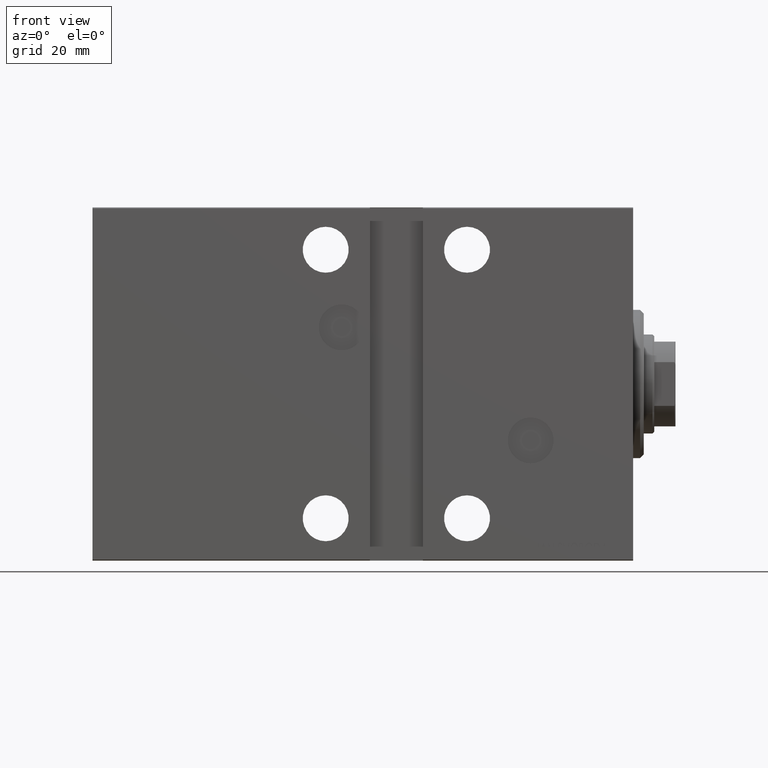
[diagram: clean part render]
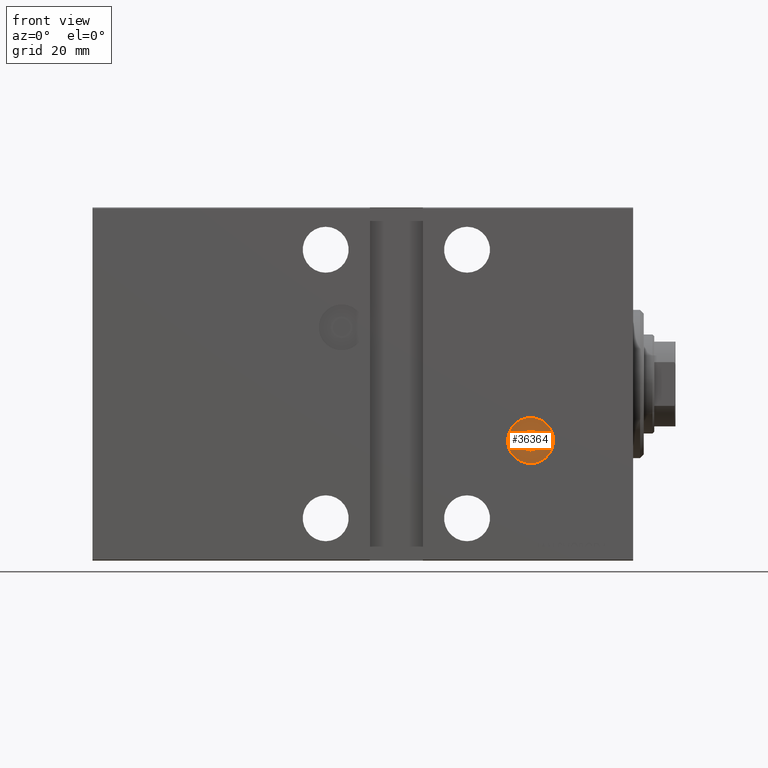
[diagram: same view with one face highlighted and labeled with its STEP entity id]
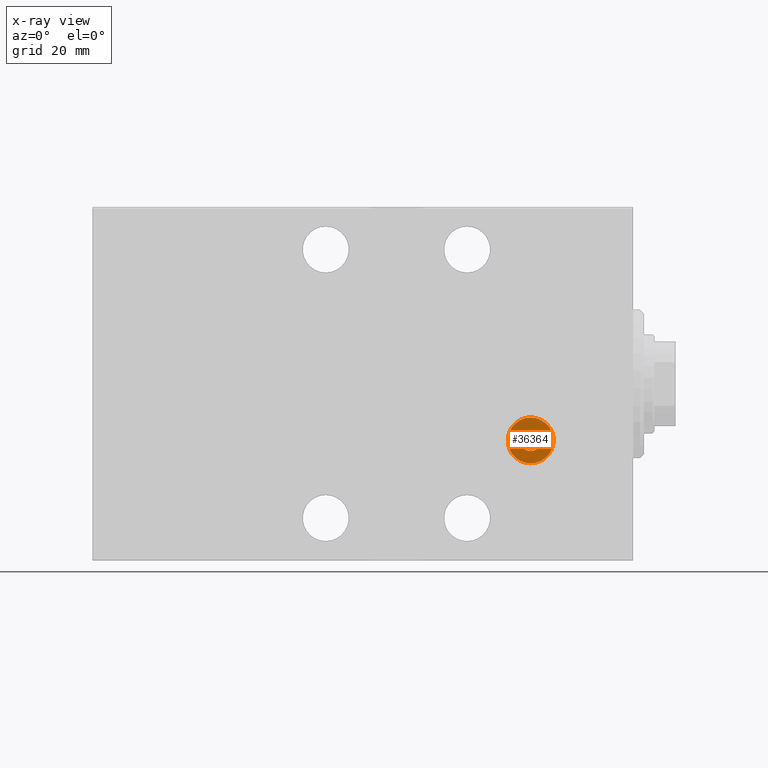
[diagram: x-ray of the same camera — body ghosted, the highlighted face saturated]
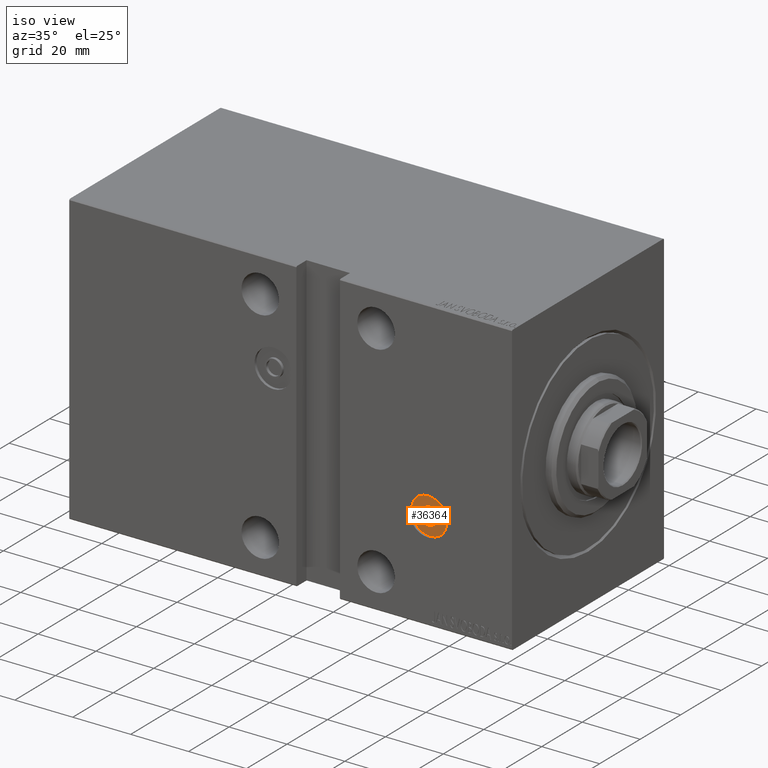
[diagram: same view with one face highlighted and labeled with its STEP entity id]
A machine part, front view. The second image highlights one B-rep face of the part: STEP entity #36364.
The next image is the same camera in x-ray: the body ghosted, the highlighted face saturated — about 0% of this face is hidden behind the body in this view.
A second angle (iso view) of the same face is appended — the face is thin or edge-on in the first view.
In plain terms, the highlighted planar face has unit normal (0, -1, 0).
Its self-contained STEP definition (entity closure, byte-faithful):
#2111 = CIRCLE ( 'NONE', #6363, 6.500000000000005329 ) ;
#3978 = CIRCLE ( 'NONE', #40716, 2.999999999999997335 ) ;
#4628 = CARTESIAN_POINT ( 'NONE',  ( 29.00000000000000000, 36.50000000000001421, -15.99999999999999289 ) ) ;
#4923 = DIRECTION ( 'NONE',  ( 0.000000000000000000, 0.000000000000000000, 1.000000000000000000 ) ) ;
#5073 = CARTESIAN_POINT ( 'NONE',  ( 29.00000000000000000, 36.50000000000001421, -15.99999999999999289 ) ) ;
#5890 = VERTEX_POINT ( 'NONE', #12467 ) ;
#5938 = VERTEX_POINT ( 'NONE', #31239 ) ;
#6363 = AXIS2_PLACEMENT_3D ( 'NONE', #5073, #11957, #15276 ) ;
#7512 = CARTESIAN_POINT ( 'NONE',  ( 29.00000000000000000, 36.50000000000001421, -12.99999999999999645 ) ) ;
#10674 = PLANE ( 'NONE',  #14236 ) ;
#11957 = DIRECTION ( 'NONE',  ( 0.000000000000000000, 1.000000000000000000, 1.067522139062650425E-16 ) ) ;
#12467 = CARTESIAN_POINT ( 'NONE',  ( 29.00000000000000000, 36.50000000000001421, -18.99999999999999289 ) ) ;
#13534 = AXIS2_PLACEMENT_3D ( 'NONE', #34815, #25077, #18222 ) ;
#14236 = AXIS2_PLACEMENT_3D ( 'NONE', #24157, #37653, #34539 ) ;
#14649 = FACE_BOUND ( 'NONE', #20075, .T. ) ;
#14909 = DIRECTION ( 'NONE',  ( 0.000000000000000000, 1.000000000000000000, 1.067522139062650425E-16 ) ) ;
#15117 = CARTESIAN_POINT ( 'NONE',  ( 29.00000000000000000, 36.50000000000001421, -15.99999999999999289 ) ) ;
#15177 = EDGE_CURVE ( 'NONE', #5890, #33008, #3978, .T. ) ;
#15276 = DIRECTION ( 'NONE',  ( 0.000000000000000000, 0.000000000000000000, 1.000000000000000000 ) ) ;
#16054 = ORIENTED_EDGE ( 'NONE', *, *, #30024, .T. ) ;
#17559 = ORIENTED_EDGE ( 'NONE', *, *, #15177, .F. ) ;
#18222 = DIRECTION ( 'NONE',  ( 0.000000000000000000, 0.000000000000000000, 1.000000000000000000 ) ) ;
#19200 = ORIENTED_EDGE ( 'NONE', *, *, #37012, .F. ) ;
#20075 = EDGE_LOOP ( 'NONE', ( #17559, #19200 ) ) ;
#21357 = EDGE_CURVE ( 'NONE', #5938, #24748, #28765, .T. ) ;
#23881 = CARTESIAN_POINT ( 'NONE',  ( 29.00000000000000000, 36.50000000000001421, -22.50000000000000000 ) ) ;
#24157 = CARTESIAN_POINT ( 'NONE',  ( 29.00000000000000000, 36.50000000000001421, -15.99999999999999289 ) ) ;
#24748 = VERTEX_POINT ( 'NONE', #23881 ) ;
#25077 = DIRECTION ( 'NONE',  ( 0.000000000000000000, 1.000000000000000000, 1.067522139062650425E-16 ) ) ;
#26698 = ORIENTED_EDGE ( 'NONE', *, *, #21357, .T. ) ;
#27450 = DIRECTION ( 'NONE',  ( 0.000000000000000000, 1.000000000000000000, 1.067522139062650425E-16 ) ) ;
#28765 = CIRCLE ( 'NONE', #39372, 6.500000000000005329 ) ;
#30024 = EDGE_CURVE ( 'NONE', #24748, #5938, #2111, .T. ) ;
#30477 = CIRCLE ( 'NONE', #13534, 2.999999999999997335 ) ;
#31202 = DIRECTION ( 'NONE',  ( 0.000000000000000000, 0.000000000000000000, 1.000000000000000000 ) ) ;
#31239 = CARTESIAN_POINT ( 'NONE',  ( 29.00000000000000000, 36.50000000000001421, -9.499999999999987566 ) ) ;
#33008 = VERTEX_POINT ( 'NONE', #7512 ) ;
#34539 = DIRECTION ( 'NONE',  ( 0.000000000000000000, -1.067522139062650425E-16, 1.000000000000000000 ) ) ;
#34815 = CARTESIAN_POINT ( 'NONE',  ( 29.00000000000000000, 36.50000000000001421, -15.99999999999999289 ) ) ;
#36364 = ADVANCED_FACE ( 'NONE', ( #14649, #40963 ), #10674, .T. ) ;
#37012 = EDGE_CURVE ( 'NONE', #33008, #5890, #30477, .T. ) ;
#37590 = EDGE_LOOP ( 'NONE', ( #26698, #16054 ) ) ;
#37653 = DIRECTION ( 'NONE',  ( 0.000000000000000000, 1.000000000000000000, 1.067522139062650425E-16 ) ) ;
#39372 = AXIS2_PLACEMENT_3D ( 'NONE', #15117, #14909, #4923 ) ;
#40716 = AXIS2_PLACEMENT_3D ( 'NONE', #4628, #27450, #31202 ) ;
#40963 = FACE_OUTER_BOUND ( 'NONE', #37590, .T. ) ;